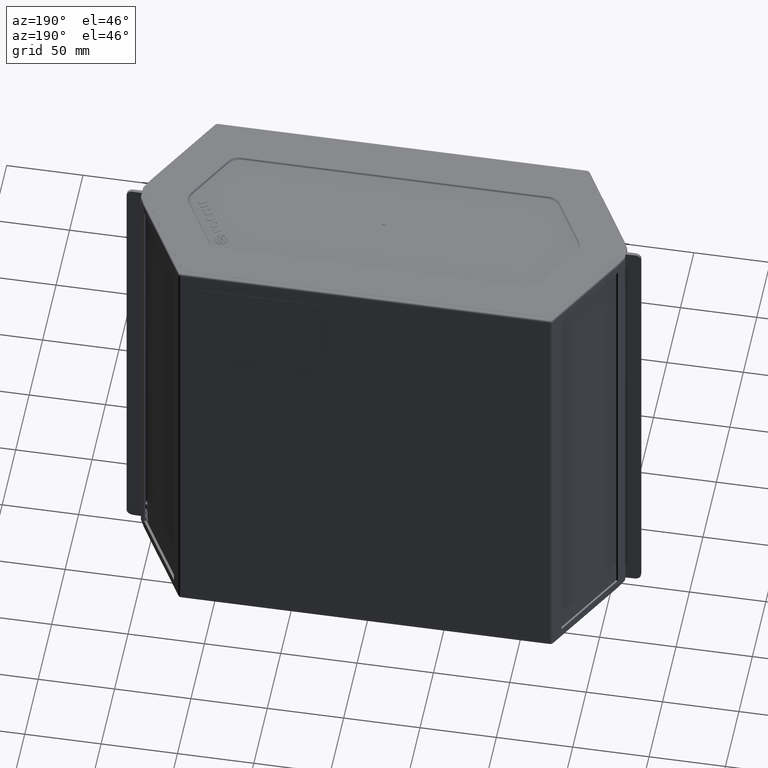
[diagram: clean part render]
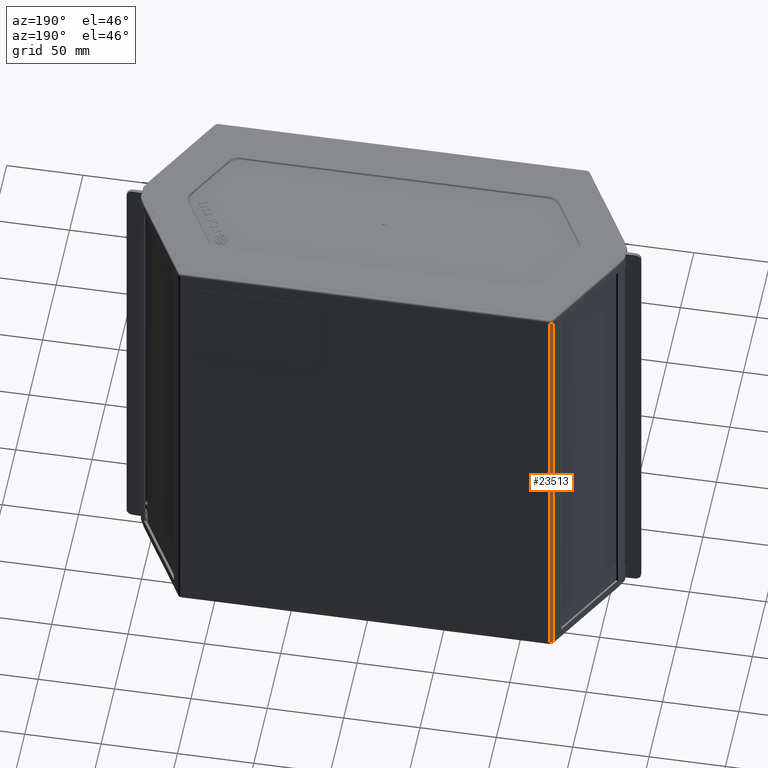
[diagram: same view with one face highlighted and labeled with its STEP entity id]
A machine part, auxiliary view. The second image highlights one B-rep face of the part: STEP entity #23513.
In plain terms, the highlighted cylindrical surface (edge-blend (fillet) strip) has radius 1.98 mm, axis along (0, 0, 1).
Its self-contained STEP definition (entity closure, byte-faithful):
#1936=FACE_OUTER_BOUND('',#3251,.T.);
#3251=EDGE_LOOP('',(#14857,#14858,#14859,#14860));
#4632=LINE('',#32259,#6528);
#4645=LINE('',#32289,#6541);
#6528=VECTOR('',#26718,10.);
#6541=VECTOR('',#26745,10.);
#8413=CIRCLE('',#24863,1.97999999999997);
#8414=CIRCLE('',#24864,1.97999999999997);
#9078=VERTEX_POINT('',#32253);
#9080=VERTEX_POINT('',#32257);
#9089=VERTEX_POINT('',#32285);
#9090=VERTEX_POINT('',#32287);
#11336=EDGE_CURVE('',#9080,#9078,#4632,.T.);
#11349=EDGE_CURVE('',#9078,#9089,#8413,.T.);
#11350=EDGE_CURVE('',#9090,#9080,#8414,.T.);
#11351=EDGE_CURVE('',#9090,#9089,#4645,.T.);
#14857=ORIENTED_EDGE('',*,*,#11349,.F.);
#14858=ORIENTED_EDGE('',*,*,#11336,.F.);
#14859=ORIENTED_EDGE('',*,*,#11350,.F.);
#14860=ORIENTED_EDGE('',*,*,#11351,.T.);
#21777=CYLINDRICAL_SURFACE('',#24862,1.97999999999997);
#23513=ADVANCED_FACE('',(#1936),#21777,.T.);
#24862=AXIS2_PLACEMENT_3D('',#32284,#26739,#26740);
#24863=AXIS2_PLACEMENT_3D('',#32286,#26741,#26742);
#24864=AXIS2_PLACEMENT_3D('',#32288,#26743,#26744);
#26718=DIRECTION('',(0.,0.,-1.));
#26739=DIRECTION('center_axis',(0.,0.,1.));
#26740=DIRECTION('ref_axis',(-0.866025385881105,0.500000031009483,0.));
#26741=DIRECTION('center_axis',(0.,0.,-1.));
#26742=DIRECTION('ref_axis',(-0.866025385881105,0.500000031009483,0.));
#26743=DIRECTION('center_axis',(0.,-1.22464679914735E-16,1.));
#26744=DIRECTION('ref_axis',(-0.866025385881105,0.500000031009483,0.));
#26745=DIRECTION('',(0.,0.,-1.));
#32253=CARTESIAN_POINT('',(-122.609612497529,67.9900000613988,1.99999999999999));
#32257=CARTESIAN_POINT('',(-122.609612497529,67.9900000613988,297.9));
#32259=CARTESIAN_POINT('',(-122.609612497529,67.9900000613988,149.95));
#32284=CARTESIAN_POINT('Origin',(-120.894882233485,67.,149.95));
#32285=CARTESIAN_POINT('',(-120.894882233485,68.98,1.99999999999999));
#32286=CARTESIAN_POINT('Origin',(-120.894882233485,67.,1.99999999999999));
#32287=CARTESIAN_POINT('',(-120.894882233485,68.98,297.9));
#32288=CARTESIAN_POINT('Origin',(-120.894882233485,67.,297.9));
#32289=CARTESIAN_POINT('',(-120.894882233485,68.98,149.95));